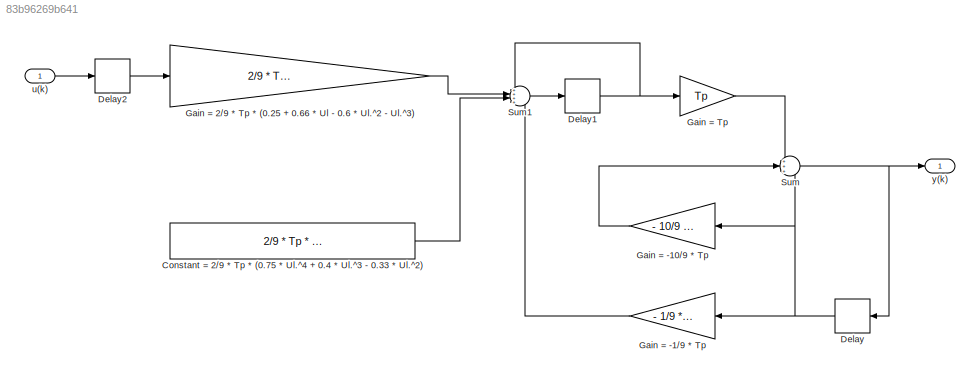
MODEL slx_83b96269b641
KIND model
CONFIG AbsTol = auto
CONFIG EnableMultiTasking = off
CONFIG FixedStep = auto
CONFIG MaxStep = auto
CONFIG MinStep = auto
CONFIG RelTol = 1e-3
CONFIG SampleTimeConstraint = Unconstrained
CONFIG Solver = VariableStepAuto
CONFIG SolverName = VariableStepAuto
CONFIG StartTime = 0.0
CONFIG StopTime = 10.0
BLOCK [Constant] Constant = 2//9 * Tp * (0.75 * Ul.^4 + 0.4 * Ul.^3 - 0.33 * Ul.^2)
  Value = 2/9 * Tp * (0.75 * Ul.^4 + 0.4 * Ul.^3 - 0.33 * Ul.^2)
BLOCK [Delay] Delay
  DelayLength = 1
  InitialCondition = 0
  InputPortMap = u0
  Ports = [1, 1]
BLOCK [Delay] Delay1
  DelayLength = 1
  InitialCondition = 0
  InputPortMap = u0
  Ports = [1, 1]
BLOCK [Delay] Delay2
  DelayLength = 1
  InitialCondition = 0
  InputPortMap = u0
  Ports = [1, 1]
BLOCK [Gain] Gain = -1//9 * Tp
  Gain = - 1/9 * Tp
  OutDataTypeStr = Inherit: Inherit via internal rule
  ParamDataTypeStr = Inherit: Inherit via internal rule
  SaturateOnIntegerOverflow = off
BLOCK [Gain] Gain = -10//9 * Tp
  Gain = - 10/9 * Tp
  OutDataTypeStr = Inherit: Inherit via internal rule
  ParamDataTypeStr = Inherit: Inherit via internal rule
  SaturateOnIntegerOverflow = off
BLOCK [Gain] Gain = 2//9 * Tp * (0.25 + 0.66 * Ul - 0.6 * Ul.^2 - Ul.^3)
  Gain = 2/9 * Tp * (0.25 + 0.66 * Ul - 0.6 * Ul.^2 - Ul.^3)
  OutDataTypeStr = Inherit: Inherit via internal rule
  ParamDataTypeStr = Inherit: Inherit via internal rule
  SaturateOnIntegerOverflow = off
BLOCK [Gain] Gain = Tp
  Gain = Tp
  OutDataTypeStr = Inherit: Inherit via internal rule
  ParamDataTypeStr = Inherit: Inherit via internal rule
  SaturateOnIntegerOverflow = off
BLOCK [Sum] Sum
  IconShape = round
  InputSameDT = off
  Inputs = +++
  OutDataTypeStr = Inherit: Inherit via internal rule
  Ports = [3, 1]
  SaturateOnIntegerOverflow = off
BLOCK [Sum] Sum1
  IconShape = round
  InputSameDT = off
  Inputs = ++++
  OutDataTypeStr = Inherit: Inherit via internal rule
  Ports = [4, 1]
  SaturateOnIntegerOverflow = off
BLOCK [Inport] u(k)
  IconDisplay = Port number
BLOCK [Outport] y(k)
  IconDisplay = Port number
LINE Constant = 2//9 * Tp * (0.75 * Ul.^4 + 0.4 * Ul.^3 - 0.33 * Ul.^2):1 -> Sum1:3
NET Delay1:1 -> Gain = Tp:1, Sum1:1
LINE Delay2:1 -> Gain = 2//9 * Tp * (0.25 + 0.66 * Ul - 0.6 * Ul.^2 - Ul.^3):1
NET Delay:1 -> Gain = -1//9 * Tp:1, Gain = -10//9 * Tp:1, Sum:3
LINE Gain = -1//9 * Tp:1 -> Sum1:4
LINE Gain = -10//9 * Tp:1 -> Sum:2
LINE Gain = 2//9 * Tp * (0.25 + 0.66 * Ul - 0.6 * Ul.^2 - Ul.^3):1 -> Sum1:2
LINE Gain = Tp:1 -> Sum:1
LINE Sum1:1 -> Delay1:1
NET Sum:1 -> Delay:1, y(k):1
LINE u(k):1 -> Delay2:1
note: NET lines group one-source signal fan-out (src -> all destinations, sorted); 1:1 wires keep LINE
